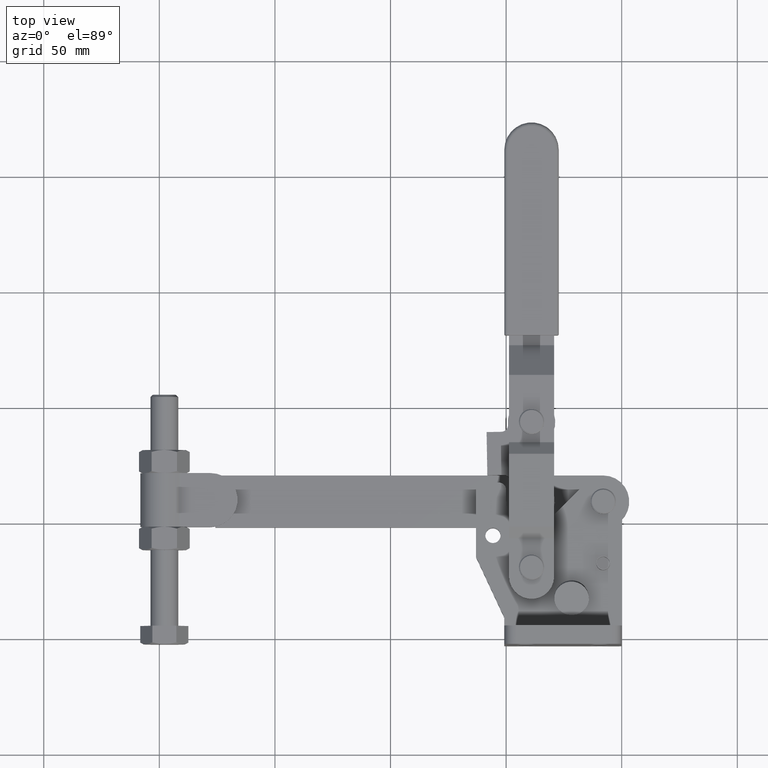
[diagram: clean part render]
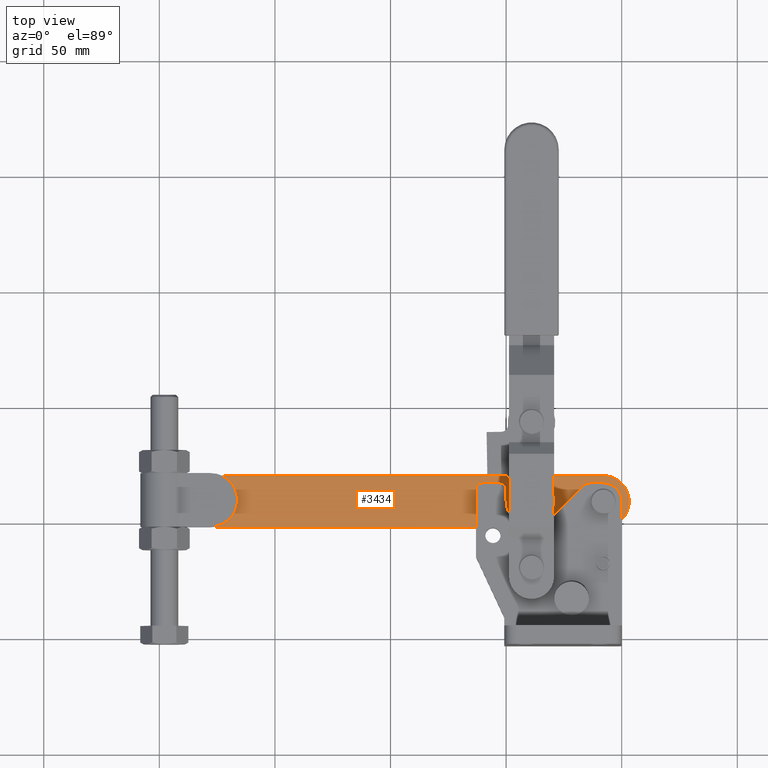
[diagram: same view with one face highlighted and labeled with its STEP entity id]
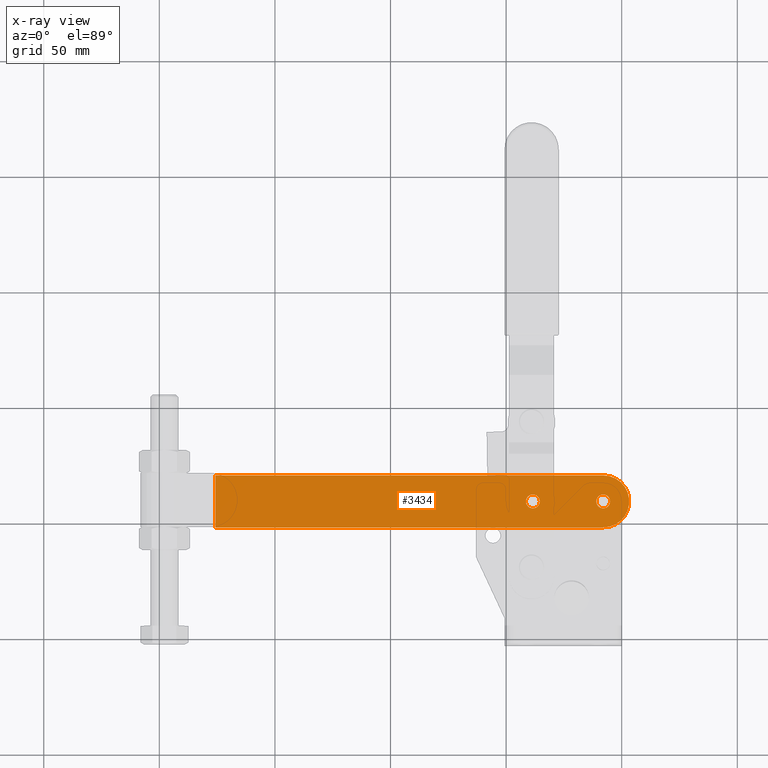
[diagram: x-ray of the same camera — body ghosted, the highlighted face saturated]
A machine part, top view. The second image highlights one B-rep face of the part: STEP entity #3434.
The next image is the same camera in x-ray: the body ghosted, the highlighted face saturated — about 0% of this face is hidden behind the body in this view.
In plain terms, the highlighted planar face has unit normal (0, 0, 1).
Its self-contained STEP definition (entity closure, byte-faithful):
#245 = ORIENTED_EDGE ( 'NONE', *, *, #5531, .T. ) ;
#340 = FACE_OUTER_BOUND ( 'NONE', #588, .T. ) ;
#471 = DIRECTION ( 'NONE',  ( 1.000000000000000000, 0.0000000000000000000, 0.0000000000000000000 ) ) ;
#475 = DIRECTION ( 'NONE',  ( 0.0000000000000000000, 0.0000000000000000000, 1.000000000000000000 ) ) ;
#554 = CARTESIAN_POINT ( 'NONE',  ( -8.069611927795941500, 59.69540433516633000, 0.0000000000000000000 ) ) ;
#588 = EDGE_LOOP ( 'NONE', ( #6195, #9845, #9987, #245 ) ) ;
#939 = DIRECTION ( 'NONE',  ( 0.0000000000000000000, 0.0000000000000000000, 1.000000000000000000 ) ) ;
#1106 = ORIENTED_EDGE ( 'NONE', *, *, #1618, .F. ) ;
#1507 = DIRECTION ( 'NONE',  ( 1.000000000000000000, 0.0000000000000000000, 0.0000000000000000000 ) ) ;
#1509 = DIRECTION ( 'NONE',  ( 0.0000000000000000000, 0.0000000000000000000, 1.000000000000000000 ) ) ;
#1524 = CARTESIAN_POINT ( 'NONE',  ( -8.069611927795941500, 59.69540433516633000, 1.499668444981949700E-012 ) ) ;
#1618 = EDGE_CURVE ( 'NONE', #5679, #10735, #1757, .T. ) ;
#1757 = CIRCLE ( 'NONE', #10437, 3.000000000000002700 ) ;
#1987 = DIRECTION ( 'NONE',  ( 1.000000000000000000, 0.0000000000000000000, 0.0000000000000000000 ) ) ;
#2139 = VERTEX_POINT ( 'NONE', #3553 ) ;
#2253 = EDGE_CURVE ( 'NONE', #10757, #6600, #3151, .T. ) ;
#2607 = CARTESIAN_POINT ( 'NONE',  ( -8.069611927795941500, 70.94540433516633000, 1.499668444981949700E-012 ) ) ;
#2726 = VERTEX_POINT ( 'NONE', #4090 ) ;
#2738 = DIRECTION ( 'NONE',  ( 1.000000000000000000, -0.0000000000000000000, -0.0000000000000000000 ) ) ;
#2837 = EDGE_LOOP ( 'NONE', ( #1106, #11145 ) ) ;
#2870 = DIRECTION ( 'NONE',  ( -1.000000000000000000, 0.0000000000000000000, 0.0000000000000000000 ) ) ;
#2912 = CARTESIAN_POINT ( 'NONE',  ( -8.069611927795941500, 70.94540433516633000, 1.499668444981949700E-012 ) ) ;
#3004 = CARTESIAN_POINT ( 'NONE',  ( -8.069611927795941500, 48.44540433516635100, 1.499668444981949700E-012 ) ) ;
#3151 = CIRCLE ( 'NONE', #5752, 3.000000000000000900 ) ;
#3204 = CARTESIAN_POINT ( 'NONE',  ( -8.069611927795941500, 48.44540433516635100, 1.499668444981949700E-012 ) ) ;
#3347 = ORIENTED_EDGE ( 'NONE', *, *, #2253, .F. ) ;
#3430 = EDGE_CURVE ( 'NONE', #2726, #2139, #9268, .T. ) ;
#3434 = ADVANCED_FACE ( 'NONE', ( #340, #8990, #4414 ), #9359, .T. ) ;
#3553 = CARTESIAN_POINT ( 'NONE',  ( -175.8196119277961000, 48.44540433516635100, 0.0000000000000000000 ) ) ;
#3868 = EDGE_CURVE ( 'NONE', #10735, #5679, #6672, .T. ) ;
#4090 = CARTESIAN_POINT ( 'NONE',  ( -175.8196119277959900, 70.94540433516633000, 0.0000000000000000000 ) ) ;
#4414 = FACE_BOUND ( 'NONE', #2837, .T. ) ;
#4425 = CARTESIAN_POINT ( 'NONE',  ( -11.06961192779594300, 59.69540433516633000, 0.0000000000000000000 ) ) ;
#4543 = CARTESIAN_POINT ( 'NONE',  ( -41.49999978351899400, 59.70012061769816100, 0.0000000000000000000 ) ) ;
#4751 = CARTESIAN_POINT ( 'NONE',  ( -38.49999978351899400, 59.70012061769816100, 0.0000000000000000000 ) ) ;
#4823 = CIRCLE ( 'NONE', #6926, 3.000000000000000900 ) ;
#4854 = DIRECTION ( 'NONE',  ( 1.000000000000000000, 0.0000000000000000000, 0.0000000000000000000 ) ) ;
#4884 = CARTESIAN_POINT ( 'NONE',  ( -38.49999978351899400, 59.70012061769816100, 0.0000000000000000000 ) ) ;
#4896 = DIRECTION ( 'NONE',  ( 0.0000000000000000000, 0.0000000000000000000, 1.000000000000000000 ) ) ;
#5041 = CARTESIAN_POINT ( 'NONE',  ( -5.069611927795940600, 59.69540433516633000, 0.0000000000000000000 ) ) ;
#5061 = AXIS2_PLACEMENT_3D ( 'NONE', #9239, #9120, #9097 ) ;
#5520 = ORIENTED_EDGE ( 'NONE', *, *, #7338, .F. ) ;
#5531 = EDGE_CURVE ( 'NONE', #2139, #6894, #10260, .T. ) ;
#5679 = VERTEX_POINT ( 'NONE', #10544 ) ;
#5752 = AXIS2_PLACEMENT_3D ( 'NONE', #10050, #939, #9890 ) ;
#6195 = ORIENTED_EDGE ( 'NONE', *, *, #7187, .T. ) ;
#6562 = VECTOR ( 'NONE', #2870, 1000.000000000000000 ) ;
#6600 = VERTEX_POINT ( 'NONE', #5041 ) ;
#6672 = CIRCLE ( 'NONE', #10038, 3.000000000000002700 ) ;
#6679 = VECTOR ( 'NONE', #9210, 1000.000000000000000 ) ;
#6894 = VERTEX_POINT ( 'NONE', #3204 ) ;
#6926 = AXIS2_PLACEMENT_3D ( 'NONE', #554, #475, #471 ) ;
#6963 = EDGE_CURVE ( 'NONE', #8052, #2726, #11123, .T. ) ;
#7031 = CARTESIAN_POINT ( 'NONE',  ( -175.8196119277961000, 56.44540433516635900, 1.499668444981949700E-012 ) ) ;
#7187 = EDGE_CURVE ( 'NONE', #6894, #8052, #9274, .T. ) ;
#7338 = EDGE_CURVE ( 'NONE', #6600, #10757, #4823, .T. ) ;
#7739 = AXIS2_PLACEMENT_3D ( 'NONE', #1524, #1509, #1507 ) ;
#7992 = VECTOR ( 'NONE', #2738, 1000.000000000000000 ) ;
#8052 = VERTEX_POINT ( 'NONE', #2607 ) ;
#8084 = EDGE_LOOP ( 'NONE', ( #5520, #3347 ) ) ;
#8960 = DIRECTION ( 'NONE',  ( 0.0000000000000000000, 0.0000000000000000000, 1.000000000000000000 ) ) ;
#8990 = FACE_BOUND ( 'NONE', #8084, .T. ) ;
#9097 = DIRECTION ( 'NONE',  ( 1.000000000000000000, 0.0000000000000000000, -0.0000000000000000000 ) ) ;
#9120 = DIRECTION ( 'NONE',  ( 0.0000000000000000000, 0.0000000000000000000, 1.000000000000000000 ) ) ;
#9210 = DIRECTION ( 'NONE',  ( -1.708035422500239500E-014, -1.000000000000000000, -0.0000000000000000000 ) ) ;
#9239 = CARTESIAN_POINT ( 'NONE',  ( -8.069611927795941500, 59.69540433516633000, 1.499668444981949700E-012 ) ) ;
#9268 = LINE ( 'NONE', #7031, #6679 ) ;
#9274 = CIRCLE ( 'NONE', #7739, 11.24999999999998200 ) ;
#9359 = PLANE ( 'NONE',  #5061 ) ;
#9845 = ORIENTED_EDGE ( 'NONE', *, *, #6963, .T. ) ;
#9890 = DIRECTION ( 'NONE',  ( 1.000000000000000000, 0.0000000000000000000, 0.0000000000000000000 ) ) ;
#9987 = ORIENTED_EDGE ( 'NONE', *, *, #3430, .T. ) ;
#10038 = AXIS2_PLACEMENT_3D ( 'NONE', #4884, #4896, #4854 ) ;
#10050 = CARTESIAN_POINT ( 'NONE',  ( -8.069611927795941500, 59.69540433516633000, 0.0000000000000000000 ) ) ;
#10260 = LINE ( 'NONE', #3004, #7992 ) ;
#10437 = AXIS2_PLACEMENT_3D ( 'NONE', #4751, #8960, #1987 ) ;
#10544 = CARTESIAN_POINT ( 'NONE',  ( -35.49999978351898700, 59.70012061769816100, 0.0000000000000000000 ) ) ;
#10735 = VERTEX_POINT ( 'NONE', #4543 ) ;
#10757 = VERTEX_POINT ( 'NONE', #4425 ) ;
#11123 = LINE ( 'NONE', #2912, #6562 ) ;
#11145 = ORIENTED_EDGE ( 'NONE', *, *, #3868, .F. ) ;